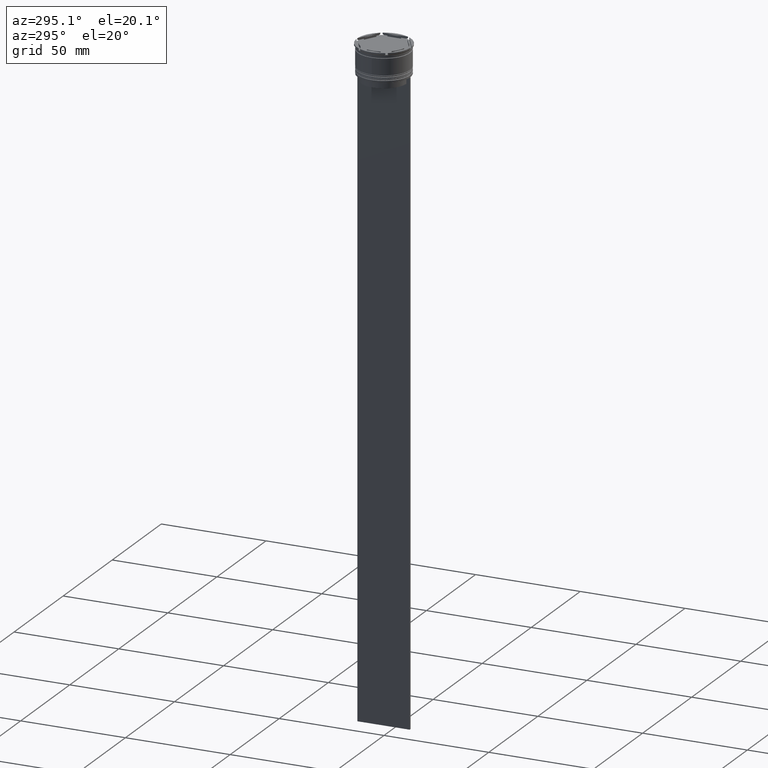
[diagram: clean part render]
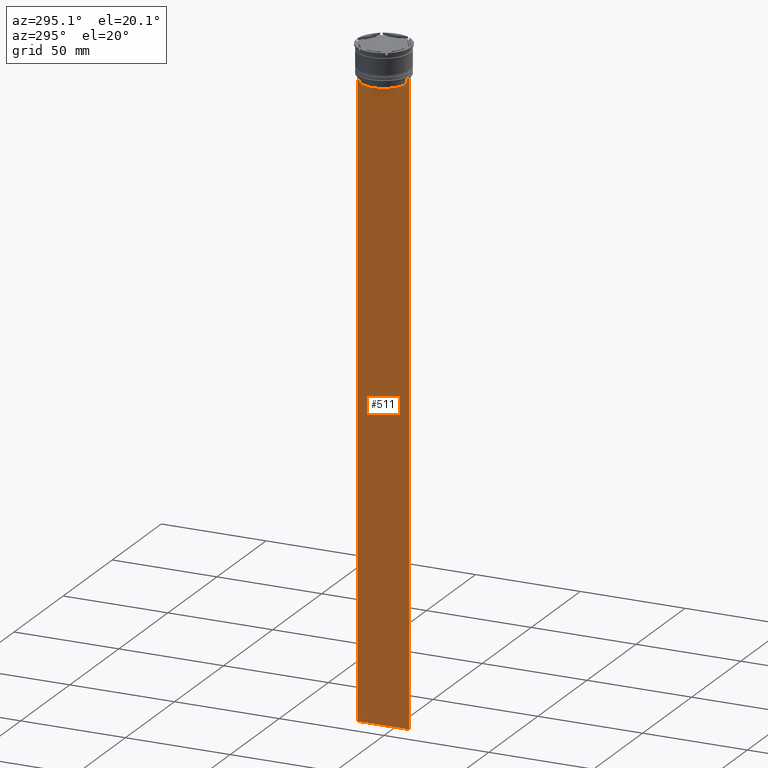
[diagram: same view with one face highlighted and labeled with its STEP entity id]
A machine part, auxiliary view. The second image highlights one B-rep face of the part: STEP entity #511.
In plain terms, the highlighted planar face has unit normal (-1, 0, 0).
Its self-contained STEP definition (entity closure, byte-faithful):
#24 = ORIENTED_EDGE ( 'NONE', *, *, #2345, .T. ) ;
#34 = VERTEX_POINT ( 'NONE', #2034 ) ;
#52 = DIRECTION ( 'NONE',  ( -1.000000000000000000, 0.000000000000000000, 0.000000000000000000 ) ) ;
#73 = LINE ( 'NONE', #1353, #1145 ) ;
#109 = VECTOR ( 'NONE', #424, 1000.000000000000000 ) ;
#133 = LINE ( 'NONE', #1021, #2813 ) ;
#159 = DIRECTION ( 'NONE',  ( 0.000000000000000000, 1.000000000000000000, 0.000000000000000000 ) ) ;
#238 = CARTESIAN_POINT ( 'NONE',  ( -0.5000000000000000000, 11.22219891375843304, -14.16667035472756808 ) ) ;
#255 = CARTESIAN_POINT ( 'NONE',  ( -0.5000000000000000000, 11.05536450345590538, -14.33333719074559376 ) ) ;
#265 = EDGE_CURVE ( 'NONE', #612, #1391, #1862, .T. ) ;
#298 = LINE ( 'NONE', #530, #2355 ) ;
#418 = LINE ( 'NONE', #1727, #2081 ) ;
#424 = DIRECTION ( 'NONE',  ( 0.000000000000000000, -1.000000000000000000, 0.000000000000000000 ) ) ;
#448 = ORIENTED_EDGE ( 'NONE', *, *, #1614, .F. ) ;
#468 = VERTEX_POINT ( 'NONE', #1526 ) ;
#511 = ADVANCED_FACE ( 'NONE', ( #1162 ), #2302, .T. ) ;
#516 = DIRECTION ( 'NONE',  ( -0.000000000000000000, -0.000000000000000000, 1.000000000000000000 ) ) ;
#530 = CARTESIAN_POINT ( 'NONE',  ( -0.5000000000000000000, 12.50000000000000711, 11.01999200639360765 ) ) ;
#548 = B_SPLINE_CURVE_WITH_KNOTS ( 'NONE', 3,
 ( #1793, #238, #255, #1146 ),
 .UNSPECIFIED., .F., .F.,
 ( 4, 4 ),
 ( 0.01935560801904634073, 0.02006307108468586772 ),
 .UNSPECIFIED. ) ;
#573 = VERTEX_POINT ( 'NONE', #2507 ) ;
#596 = ORIENTED_EDGE ( 'NONE', *, *, #265, .F. ) ;
#599 = LINE ( 'NONE', #2184, #109 ) ;
#612 = VERTEX_POINT ( 'NONE', #2518 ) ;
#675 = DIRECTION ( 'NONE',  ( 0.000000000000000000, 0.000000000000000000, -1.000000000000000000 ) ) ;
#710 = DIRECTION ( 'NONE',  ( 0.000000000000000000, 0.000000000000000000, 1.000000000000000000 ) ) ;
#721 = DIRECTION ( 'NONE',  ( 0.000000000000000000, 0.000000000000000000, -1.000000000000000000 ) ) ;
#722 = DIRECTION ( 'NONE',  ( 0.000000000000000000, -1.000000000000000000, 0.000000000000000000 ) ) ;
#770 = VERTEX_POINT ( 'NONE', #1807 ) ;
#784 = VERTEX_POINT ( 'NONE', #2467 ) ;
#810 = EDGE_CURVE ( 'NONE', #1745, #1388, #2235, .T. ) ;
#845 = ORIENTED_EDGE ( 'NONE', *, *, #1846, .F. ) ;
#855 = EDGE_CURVE ( 'NONE', #1930, #2021, #548, .T. ) ;
#858 = LINE ( 'NONE', #2620, #2673 ) ;
#925 = CARTESIAN_POINT ( 'NONE',  ( -0.5000000000000000000, -12.49999999999999289, 11.01999200639360765 ) ) ;
#1021 = CARTESIAN_POINT ( 'NONE',  ( -0.5000000000000000000, 10.90000000000000213, -17.00000000000000000 ) ) ;
#1053 = CARTESIAN_POINT ( 'NONE',  ( -0.5000000000000000000, -11.05536450423839234, -14.33333718996393102 ) ) ;
#1064 = EDGE_CURVE ( 'NONE', #573, #612, #73, .T. ) ;
#1145 = VECTOR ( 'NONE', #516, 1000.000000000000000 ) ;
#1146 = CARTESIAN_POINT ( 'NONE',  ( -0.5000000000000000000, 10.88852607105296322, -14.50000000000000000 ) ) ;
#1162 = FACE_OUTER_BOUND ( 'NONE', #2065, .T. ) ;
#1175 = CARTESIAN_POINT ( 'NONE',  ( -0.5000000000000000000, -12.49999999999999289, 11.01999200639360765 ) ) ;
#1183 = VERTEX_POINT ( 'NONE', #2352 ) ;
#1329 = DIRECTION ( 'NONE',  ( 0.000000000000000000, -1.000000000000000000, 0.000000000000000000 ) ) ;
#1353 = CARTESIAN_POINT ( 'NONE',  ( -0.5000000000000000000, -10.88852607105296322, 0.000000000000000000 ) ) ;
#1388 = VERTEX_POINT ( 'NONE', #2393 ) ;
#1391 = VERTEX_POINT ( 'NONE', #1539 ) ;
#1459 = CARTESIAN_POINT ( 'NONE',  ( -0.5000000000000000000, -12.49999999999999289, -14.00000000000000178 ) ) ;
#1526 = CARTESIAN_POINT ( 'NONE',  ( -0.5000000000000000000, -12.49999999999999289, -314.0000000000000000 ) ) ;
#1539 = CARTESIAN_POINT ( 'NONE',  ( -0.5000000000000000000, -11.38902980942626719, -14.00000000000000178 ) ) ;
#1591 = CARTESIAN_POINT ( 'NONE',  ( -0.5000000000000000000, 10.88852607105296322, -14.50000000000000000 ) ) ;
#1614 = EDGE_CURVE ( 'NONE', #770, #573, #133, .T. ) ;
#1676 = LINE ( 'NONE', #1459, #2396 ) ;
#1727 = CARTESIAN_POINT ( 'NONE',  ( -0.5000000000000000000, -12.49999999999999289, -14.00000000000000178 ) ) ;
#1745 = VERTEX_POINT ( 'NONE', #1908 ) ;
#1752 = EDGE_CURVE ( 'NONE', #468, #784, #858, .T. ) ;
#1758 = LINE ( 'NONE', #2657, #2029 ) ;
#1793 = CARTESIAN_POINT ( 'NONE',  ( -0.5000000000000000000, 11.38902980942626719, -14.00000000000000178 ) ) ;
#1807 = CARTESIAN_POINT ( 'NONE',  ( -0.5000000000000000000, 10.88852607105296144, -17.00000000000000000 ) ) ;
#1846 = EDGE_CURVE ( 'NONE', #1391, #1183, #599, .T. ) ;
#1862 = B_SPLINE_CURVE_WITH_KNOTS ( 'NONE', 3,
 ( #2621, #1053, #2597, #1942 ),
 .UNSPECIFIED., .F., .F.,
 ( 4, 4 ),
 ( 0.05041323384703226551, 0.05112713601261605068 ),
 .UNSPECIFIED. ) ;
#1908 = CARTESIAN_POINT ( 'NONE',  ( -0.5000000000000000000, 12.50000000000000711, -14.00000000000000178 ) ) ;
#1930 = VERTEX_POINT ( 'NONE', #2763 ) ;
#1932 = ORIENTED_EDGE ( 'NONE', *, *, #855, .F. ) ;
#1942 = CARTESIAN_POINT ( 'NONE',  ( -0.5000000000000000000, -11.38902980942626719, -14.00000000000000178 ) ) ;
#2021 = VERTEX_POINT ( 'NONE', #1591 ) ;
#2029 = VECTOR ( 'NONE', #675, 1000.000000000000000 ) ;
#2034 = CARTESIAN_POINT ( 'NONE',  ( -0.5000000000000000000, -12.49999999999999289, -14.00000000000000178 ) ) ;
#2039 = DIRECTION ( 'NONE',  ( 0.000000000000000000, 0.000000000000000000, -1.000000000000000000 ) ) ;
#2063 = CARTESIAN_POINT ( 'NONE',  ( -0.5000000000000000000, -12.49999999999999289, -14.00000000000000178 ) ) ;
#2065 = EDGE_LOOP ( 'NONE', ( #1932, #2578, #2200, #24, #2551, #2793, #2825, #845, #596, #2762, #448, #2658 ) ) ;
#2081 = VECTOR ( 'NONE', #1329, 1000.000000000000000 ) ;
#2085 = EDGE_CURVE ( 'NONE', #1183, #34, #1676, .T. ) ;
#2095 = LINE ( 'NONE', #925, #2821 ) ;
#2181 = DIRECTION ( 'NONE',  ( 0.000000000000000000, -1.000000000000000000, 0.000000000000000000 ) ) ;
#2184 = CARTESIAN_POINT ( 'NONE',  ( -0.5000000000000000000, -12.49999999999999289, -14.00000000000000178 ) ) ;
#2200 = ORIENTED_EDGE ( 'NONE', *, *, #810, .F. ) ;
#2235 = LINE ( 'NONE', #2063, #2534 ) ;
#2302 = PLANE ( 'NONE',  #2349 ) ;
#2306 = DIRECTION ( 'NONE',  ( 0.000000000000000000, -1.000000000000000000, 0.000000000000000000 ) ) ;
#2345 = EDGE_CURVE ( 'NONE', #1745, #784, #298, .T. ) ;
#2349 = AXIS2_PLACEMENT_3D ( 'NONE', #1175, #52, #710 ) ;
#2352 = CARTESIAN_POINT ( 'NONE',  ( -0.5000000000000000000, -12.38991525394746773, -14.00000000000000178 ) ) ;
#2355 = VECTOR ( 'NONE', #721, 1000.000000000000000 ) ;
#2386 = EDGE_CURVE ( 'NONE', #34, #468, #2095, .T. ) ;
#2393 = CARTESIAN_POINT ( 'NONE',  ( -0.5000000000000000000, 12.38991525394746773, -14.00000000000000178 ) ) ;
#2396 = VECTOR ( 'NONE', #2181, 1000.000000000000000 ) ;
#2467 = CARTESIAN_POINT ( 'NONE',  ( -0.5000000000000000000, 12.50000000000000711, -314.0000000000000000 ) ) ;
#2507 = CARTESIAN_POINT ( 'NONE',  ( -0.5000000000000000000, -10.88852607105296144, -17.00000000000000000 ) ) ;
#2518 = CARTESIAN_POINT ( 'NONE',  ( -0.5000000000000000000, -10.88852607105296322, -14.50000000000000000 ) ) ;
#2534 = VECTOR ( 'NONE', #722, 1000.000000000000000 ) ;
#2551 = ORIENTED_EDGE ( 'NONE', *, *, #1752, .F. ) ;
#2578 = ORIENTED_EDGE ( 'NONE', *, *, #2718, .F. ) ;
#2597 = CARTESIAN_POINT ( 'NONE',  ( -0.5000000000000000000, -11.22219891450652973, -14.16667035398018903 ) ) ;
#2620 = CARTESIAN_POINT ( 'NONE',  ( -0.5000000000000000000, -12.49999999999999289, -314.0000000000000000 ) ) ;
#2621 = CARTESIAN_POINT ( 'NONE',  ( -0.5000000000000000000, -10.88852607105296322, -14.50000000000000000 ) ) ;
#2648 = EDGE_CURVE ( 'NONE', #2021, #770, #1758, .T. ) ;
#2657 = CARTESIAN_POINT ( 'NONE',  ( -0.5000000000000000000, 10.88852607105296322, 0.000000000000000000 ) ) ;
#2658 = ORIENTED_EDGE ( 'NONE', *, *, #2648, .F. ) ;
#2673 = VECTOR ( 'NONE', #159, 1000.000000000000000 ) ;
#2718 = EDGE_CURVE ( 'NONE', #1388, #1930, #418, .T. ) ;
#2762 = ORIENTED_EDGE ( 'NONE', *, *, #1064, .F. ) ;
#2763 = CARTESIAN_POINT ( 'NONE',  ( -0.5000000000000000000, 11.38902980942626719, -14.00000000000000178 ) ) ;
#2793 = ORIENTED_EDGE ( 'NONE', *, *, #2386, .F. ) ;
#2813 = VECTOR ( 'NONE', #2306, 1000.000000000000000 ) ;
#2821 = VECTOR ( 'NONE', #2039, 1000.000000000000000 ) ;
#2825 = ORIENTED_EDGE ( 'NONE', *, *, #2085, .F. ) ;